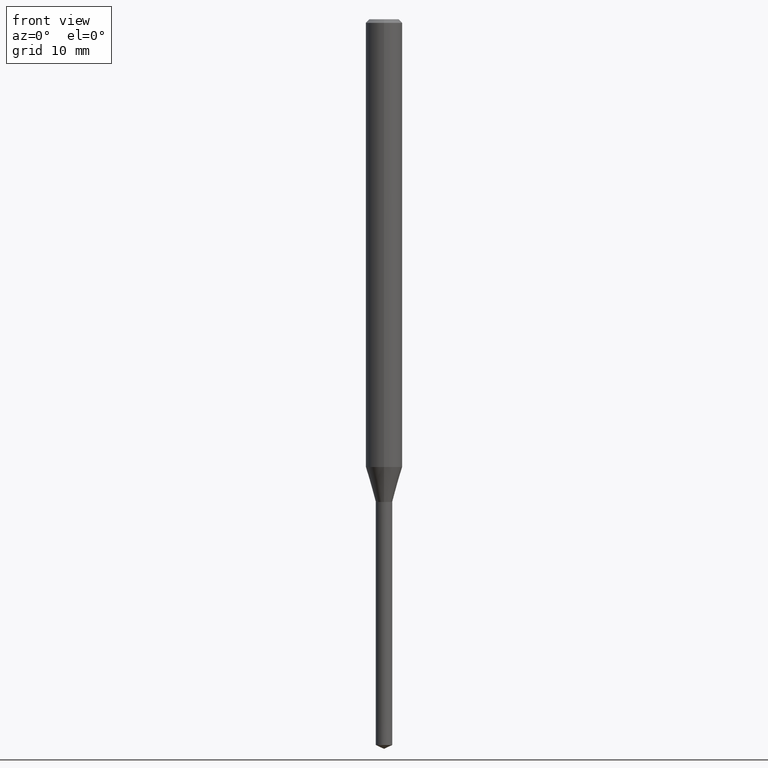
[diagram: clean part render]
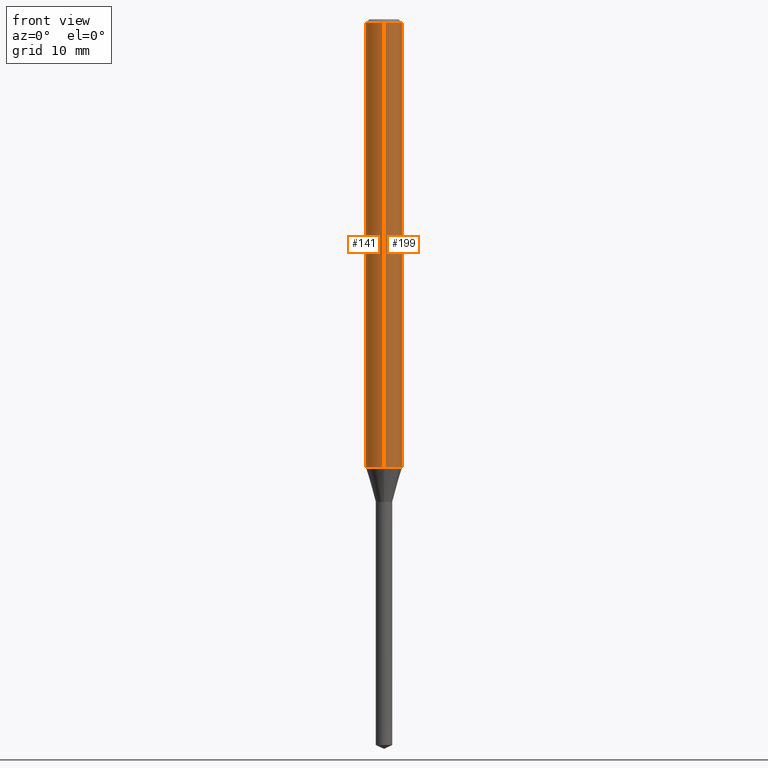
[diagram: same view with one multi-face feature highlighted, each face labeled with its STEP entity id]
A machine part, front view. The highlighted faces form ONE feature: a constant-radius fillet chain: 2 tangent blend faces with common blend radius 1.5 mm. The faces share edges in the B-rep.
Their STEP definitions:
[1] entity #141 (Cylinder):
#99=EDGE_CURVE('',#191,#113,#234,.T.);
#113=VERTEX_POINT('',#250);
#125=EDGE_CURVE('',#189,#185,#266,.T.);
#139=EDGE_CURVE('',#113,#185,#282,.T.);
#141=ADVANCED_FACE('',(#284),#285,.T.);
#163=EDGE_CURVE('',#189,#191,#308,.T.);
#185=VERTEX_POINT('',#331);
#189=VERTEX_POINT('',#335);
#191=VERTEX_POINT('',#337);
#234=CIRCLE('',#381,1.5);
#250=CARTESIAN_POINT('',(0.0,1.5,-0.299999999999997));
#266=CIRCLE('',#416,1.5);
#282=LINE('',#435,#436);
#284=FACE_OUTER_BOUND('',#438,.T.);
#285=CYLINDRICAL_SURFACE('',#439,1.5);
#308=LINE('',#472,#473);
#331=CARTESIAN_POINT('',(0.0,1.5,-36.823));
#335=CARTESIAN_POINT('',(1.83690953073357E-016,-1.5,-36.823));
#337=CARTESIAN_POINT('',(1.83690953073357E-016,-1.5,-0.299999999999997));
#381=AXIS2_PLACEMENT_3D('',#542,#543,#544);
#416=AXIS2_PLACEMENT_3D('',#593,#594,#595);
#435=CARTESIAN_POINT('',(-1.83690953073357E-016,1.5,-18.5615));
#436=VECTOR('',#616,1.0);
#438=EDGE_LOOP('',(#618,#619,#620,#621));
#439=AXIS2_PLACEMENT_3D('',#622,#623,#624);
#472=CARTESIAN_POINT('',(1.83690953073357E-016,-1.5,-18.5615));
#473=VECTOR('',#650,1.0);
#542=CARTESIAN_POINT('',(0.0,0.0,-0.299999999999997));
#543=DIRECTION('',(0.0,0.0,-1.0));
#544=DIRECTION('',(0.0,1.0,0.0));
#593=CARTESIAN_POINT('',(0.0,0.0,-36.823));
#594=DIRECTION('',(0.0,0.0,-1.0));
#595=DIRECTION('',(0.0,1.0,0.0));
#616=DIRECTION('',(0.0,0.0,-1.0));
#618=ORIENTED_EDGE('',*,*,#139,.T.);
#619=ORIENTED_EDGE('',*,*,#125,.F.);
#620=ORIENTED_EDGE('',*,*,#163,.T.);
#621=ORIENTED_EDGE('',*,*,#99,.T.);
#622=CARTESIAN_POINT('',(0.0,0.0,-18.5615));
#623=DIRECTION('',(-0.0,-0.0,1.0));
#624=DIRECTION('',(0.0,1.0,0.0));
#650=DIRECTION('',(-0.0,-0.0,1.0));
[2] entity #199 (Cylinder):
#113=VERTEX_POINT('',#250);
#139=EDGE_CURVE('',#113,#185,#282,.T.);
#145=EDGE_CURVE('',#113,#191,#289,.T.);
#163=EDGE_CURVE('',#189,#191,#308,.T.);
#185=VERTEX_POINT('',#331);
#189=VERTEX_POINT('',#335);
#191=VERTEX_POINT('',#337);
#195=EDGE_CURVE('',#185,#189,#342,.T.);
#199=ADVANCED_FACE('',(#347),#348,.T.);
#250=CARTESIAN_POINT('',(0.0,1.5,-0.299999999999997));
#282=LINE('',#435,#436);
#289=CIRCLE('',#446,1.5);
#308=LINE('',#472,#473);
#331=CARTESIAN_POINT('',(0.0,1.5,-36.823));
#335=CARTESIAN_POINT('',(1.83690953073357E-016,-1.5,-36.823));
#337=CARTESIAN_POINT('',(1.83690953073357E-016,-1.5,-0.299999999999997));
#342=CIRCLE('',#519,1.5);
#347=FACE_OUTER_BOUND('',#524,.T.);
#348=CYLINDRICAL_SURFACE('',#525,1.5);
#435=CARTESIAN_POINT('',(-1.83690953073357E-016,1.5,-18.5615));
#436=VECTOR('',#616,1.0);
#446=AXIS2_PLACEMENT_3D('',#626,#627,#628);
#472=CARTESIAN_POINT('',(1.83690953073357E-016,-1.5,-18.5615));
#473=VECTOR('',#650,1.0);
#519=AXIS2_PLACEMENT_3D('',#673,#674,#675);
#524=EDGE_LOOP('',(#685,#686,#687,#688));
#525=AXIS2_PLACEMENT_3D('',#689,#690,#691);
#616=DIRECTION('',(0.0,0.0,-1.0));
#626=CARTESIAN_POINT('',(0.0,0.0,-0.299999999999997));
#627=DIRECTION('',(0.0,0.0,-1.0));
#628=DIRECTION('',(0.0,1.0,0.0));
#650=DIRECTION('',(-0.0,-0.0,1.0));
#673=CARTESIAN_POINT('',(0.0,0.0,-36.823));
#674=DIRECTION('',(0.0,0.0,-1.0));
#675=DIRECTION('',(0.0,1.0,0.0));
#685=ORIENTED_EDGE('',*,*,#139,.F.);
#686=ORIENTED_EDGE('',*,*,#145,.T.);
#687=ORIENTED_EDGE('',*,*,#163,.F.);
#688=ORIENTED_EDGE('',*,*,#195,.F.);
#689=CARTESIAN_POINT('',(0.0,0.0,-18.5615));
#690=DIRECTION('',(-0.0,-0.0,1.0));
#691=DIRECTION('',(0.0,1.0,0.0));